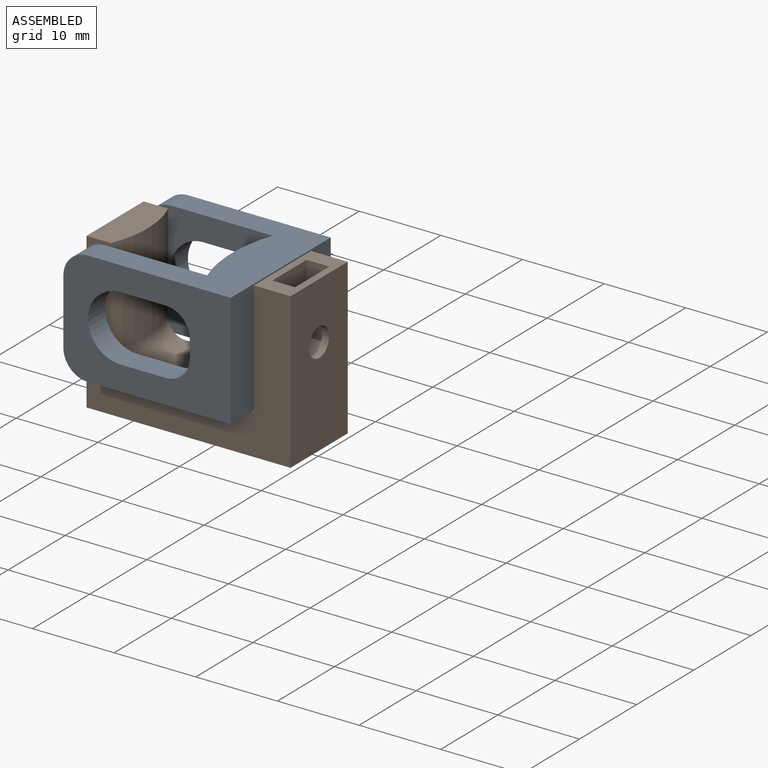
[diagram: assembled view]
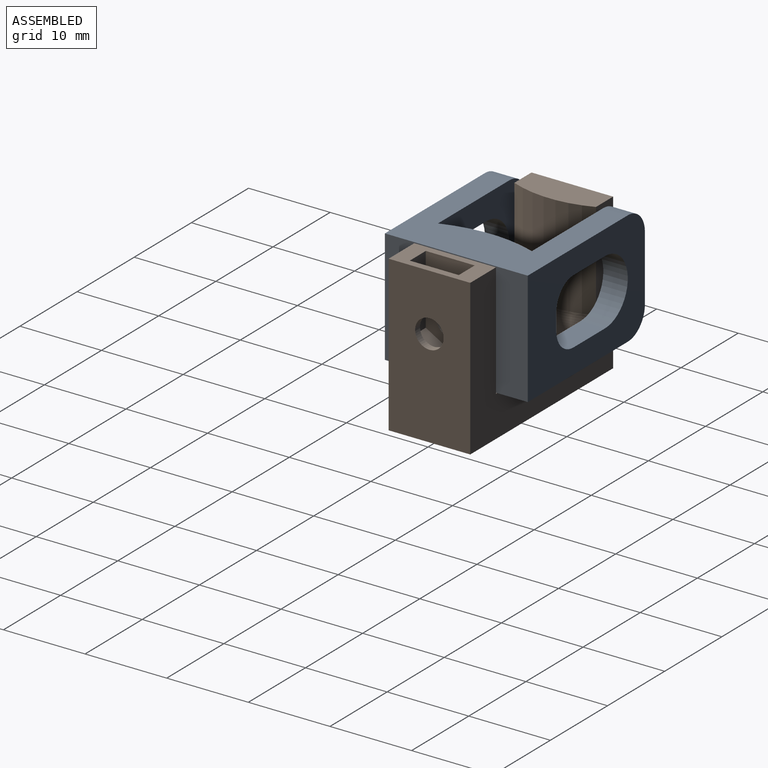
[diagram: assembled view, second angle]
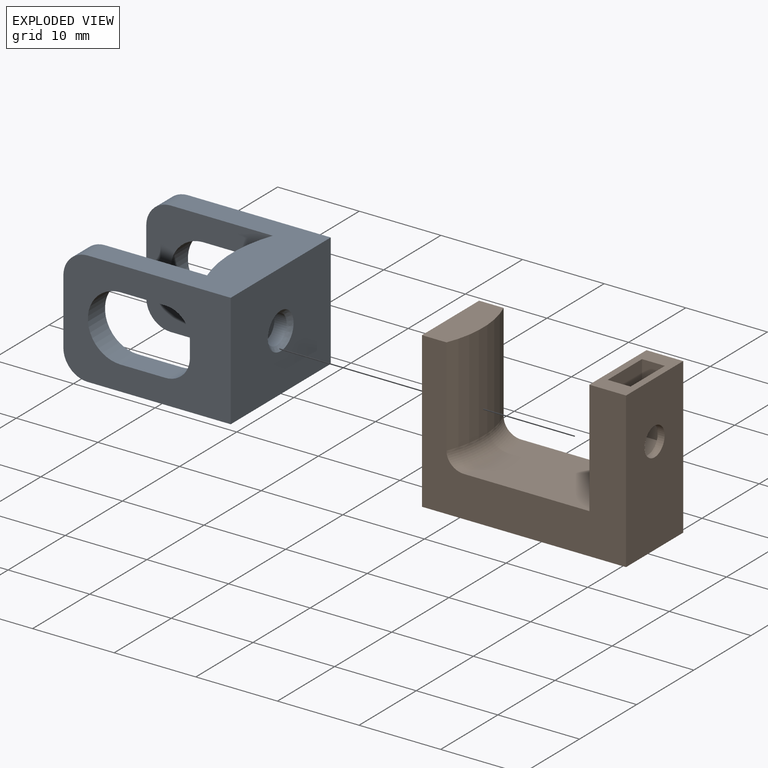
[diagram: exploded view]
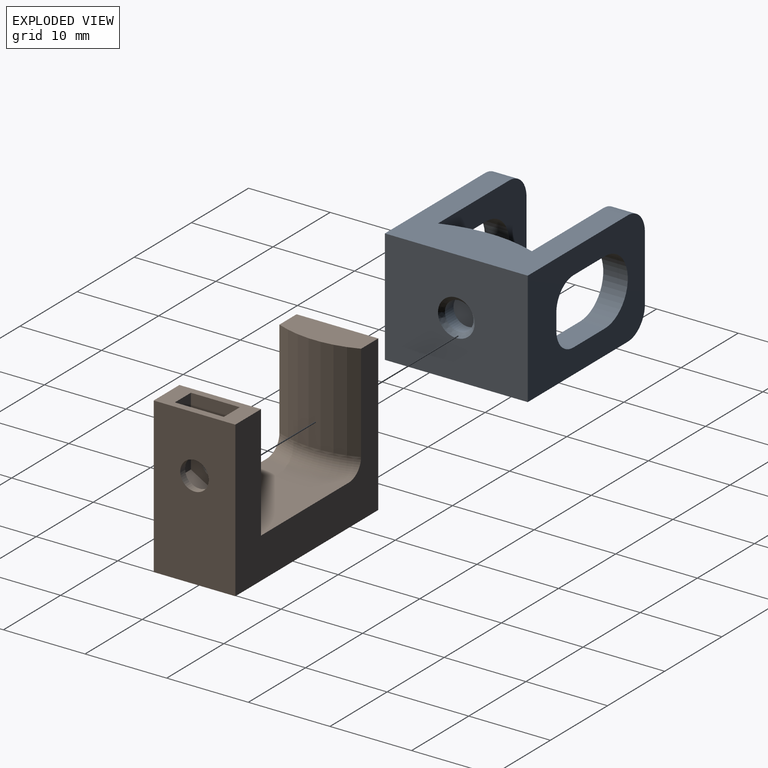
[diagram: exploded view, second angle]
ASSEMBLY  parts=2 mates=2
PART A: 30 faces, bbox 20.5x17.5x14 mm
  f0: plane 17.97x14mm, normal (0,-1,0), area 125.1mm2, adj f3,f4,f5,f7,f8,f9,f10,f23
  f1: plane 20.5x14mm, normal (0,1,0), area 193.9mm2, adj f2,f3,f4,f5,f6,f7,f8,f9
  f2: plane 17.5x14mm, normal (1,0,0), area 229.1mm2, adj f1,f4,f5,f14,f20
  f3: plane 8x3mm, normal (-1,0,0), area 24mm2, adj f0,f1,f23,f24
  f4: plane 17.5x17.5mm, normal (0,0,1), area 170.2mm2, adj f0,f1,f2,f10,f13,f14,f22,f24
  f5: plane 17.5x17.5mm, normal (0,0,-1), area 143.1mm2, adj f0,f1,f2,f13,f14,f21,f23,f29
  f6: plane 3x2mm, normal (-1,0,0), area 6mm2, adj f1,f10,f25,f26
  f7: plane 5.5x3mm, normal (0,0,-1), area 16.5mm2, adj f0,f1,f8,f26
  f8: cylinder r=4mm len=8mm, axis (0,-1,0), area 37.7mm2, adj f0,f1,f7,f9
  f9: plane 5.5x3mm, normal (0,0,1), area 16.5mm2, adj f0,f1,f8,f25
  f10: cylinder r=17.03mm len=11.7mm, axis (0,0,-1), area 137.2mm2, adj f0,f4,f6,f13,f16,f29
  f11: cylinder r=1.75mm len=3.5mm, axis (1,0,0), area 16.5mm2, adj f12,f20
  f12: plane 3.5x3.5mm, normal (1,0,0), area 9.6mm2, adj f11
  f13: plane 17.97x14mm, normal (0,1,0), area 125.1mm2, adj f4,f5,f10,f15,f17,f18,f19,f21
  f14: plane 20.5x14mm, normal (0,-1,0), area 193.9mm2, adj f2,f4,f5,f15,f16,f17,f18,f19
  f15: plane 8x3mm, normal (-1,0,0), area 24mm2, adj f13,f14,f21,f22
  f16: plane 3x2mm, normal (-1,0,0), area 6mm2, adj f10,f14,f27,f28
  f17: plane 5.5x3mm, normal (0,0,-1), area 16.5mm2, adj f13,f14,f18,f27
  f18: cylinder r=4mm len=8mm, axis (0,-1,0), area 37.7mm2, adj f13,f14,f17,f19
  f19: plane 5.5x3mm, normal (0,0,1), area 16.5mm2, adj f13,f14,f18,f28
  f20: cone r=1.75mm half-angle=45deg, axis (1,0,0), area 8.9mm2, adj f2,f11
  f21: cylinder r=3mm len=3mm, axis (0,-1,0), area 14.1mm2, adj f5,f13,f14,f15
  f22: cylinder r=3mm len=3mm, axis (0,1,0), area 14.1mm2, adj f4,f13,f14,f15
  f23: cylinder r=3mm len=3mm, axis (0,-1,0), area 14.1mm2, adj f0,f1,f3,f5
  f24: cylinder r=3mm len=3mm, axis (0,1,0), area 14.1mm2, adj f0,f1,f3,f4
  f25: cylinder r=3mm len=3mm, axis (0,-1,0), area 14.1mm2, adj f0,f1,f6,f9
  f26: cylinder r=3mm len=3mm, axis (0,1,0), area 14.1mm2, adj f0,f1,f6,f7
  f27: cylinder r=3mm len=3mm, axis (0,1,0), area 14.1mm2, adj f13,f14,f16,f17
  f28: cylinder r=3mm len=3mm, axis (0,-1,0), area 14.1mm2, adj f13,f14,f16,f19
  f29: torus R=14.73mm, axis (0,0,1), area 42.5mm2, adj f0,f5,f10,f13
PART B: 19 faces, bbox 25x13.7x19 mm
  f0: plane 10.23x6mm, normal (1,0,0), area 46.6mm2, adj f1,f2,f13,f15,f17,f18
  f1: plane 8.5x2.8mm, normal (0,-1,0), area 23.8mm2, adj f0,f12,f13,f17
  f2: plane 8.5x2.8mm, normal (0,1,0), area 23.8mm2, adj f0,f12,f13,f18
  f3: plane 15.36x10mm, normal (0,0,1), area 147.8mm2, adj f4,f6,f11,f16
  f4: plane 25x19mm, normal (0,1,0), area 230.9mm2, adj f3,f5,f7,f8,f9,f10,f11,f13
  f5: plane 19x10mm, normal (-1,0,0), area 190mm2, adj f4,f6,f8,f10
  f6: plane 25x19mm, normal (0,-1,0), area 230.9mm2, adj f3,f5,f7,f8,f9,f10,f11,f13
  f7: plane 19x10mm, normal (1,0,0), area 180.4mm2, adj f4,f6,f8,f13,f14
  f8: plane 25x10mm, normal (0,0,-1), area 250mm2, adj f4,f5,f6,f7
  f9: cylinder r=13mm len=12mm, axis (0,0,-1), area 123.2mm2, adj f4,f6,f10,f16
  f10: plane 10x4mm, normal (0,0,1), area 36.7mm2, adj f4,f5,f6,f9
  f11: plane 14x10mm, normal (-1,0,0), area 130.4mm2, adj f3,f4,f6,f13,f15
  f12: plane 10.23x6mm, normal (-1,0,0), area 46.6mm2, adj f1,f2,f13,f14,f17,f18
  f13: plane 10x4.5mm, normal (0,0,1), area 28.2mm2, adj f0,f1,f2,f4,f6,f7,f11,f12
  f14: cylinder r=1.75mm len=3.5mm, axis (1,0,0), area 9.3mm2, adj f7,f12
  f15: cylinder r=1.75mm len=3.5mm, axis (1,0,0), area 9.3mm2, adj f0,f11
  f16: torus R=15mm, axis (0,0,1), area 32.2mm2, adj f3,f4,f6,f9
  f17: plane 3x2.8mm, normal (0,-0.5,0.87), area 9.7mm2, adj f0,f1,f12,f18
  f18: plane 3x2.8mm, normal (0,0.5,0.87), area 9.7mm2, adj f0,f2,f12,f17
PLACE A t=(2.78,0.17,5.11)mm
PLACE B t=(-0.02,0.17,0.11)mm fixed
MATE cylindrical A.f11 <-> B.f14  axis (1,0,0) through (4.78,0.17,12.11)mm
MATE planar A.f5 <-> B.f3  axis (0,0,-1) through (5.28,0.17,5.11)mm
